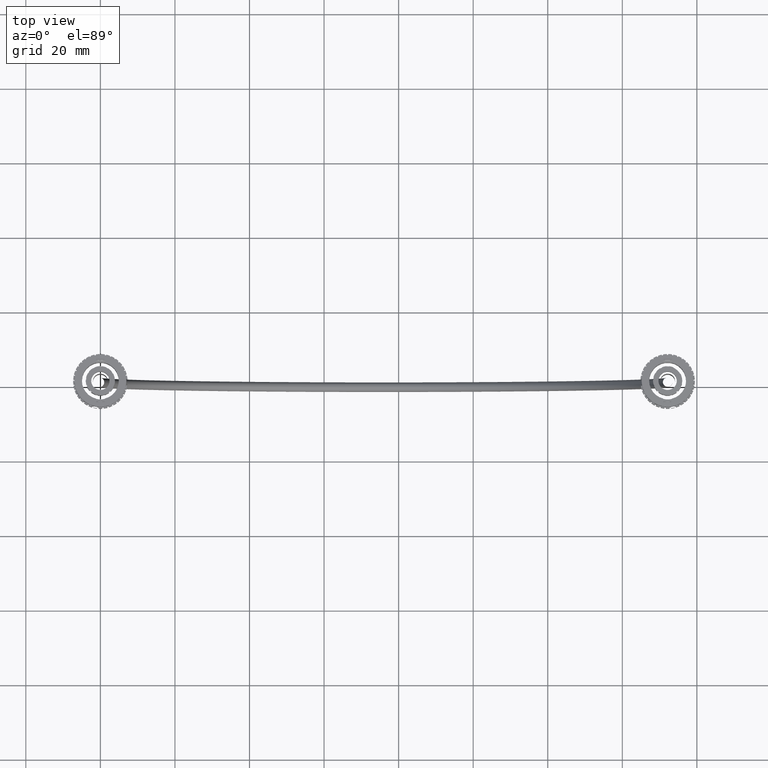
[diagram: clean part render]
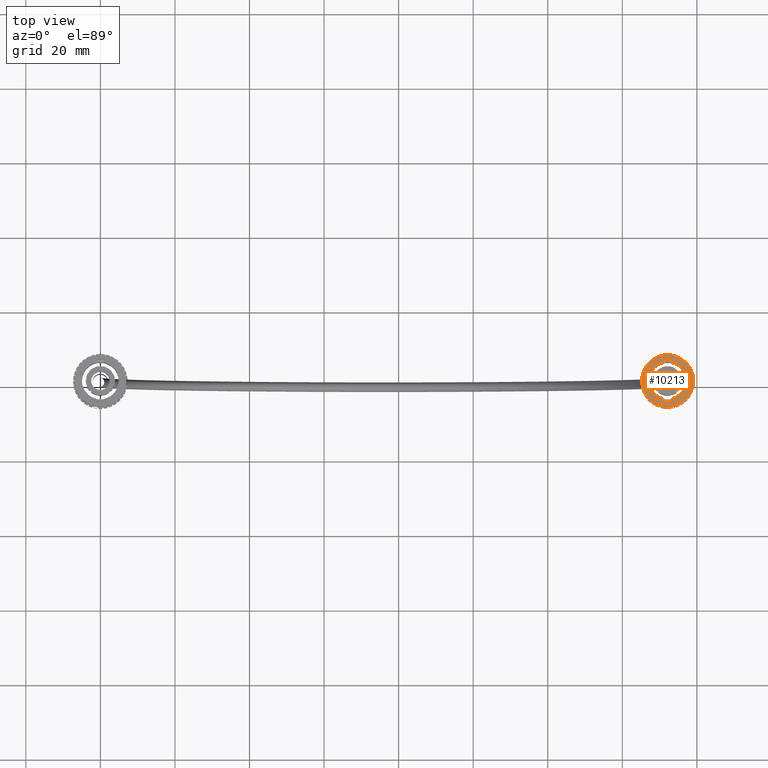
[diagram: same view with one face highlighted and labeled with its STEP entity id]
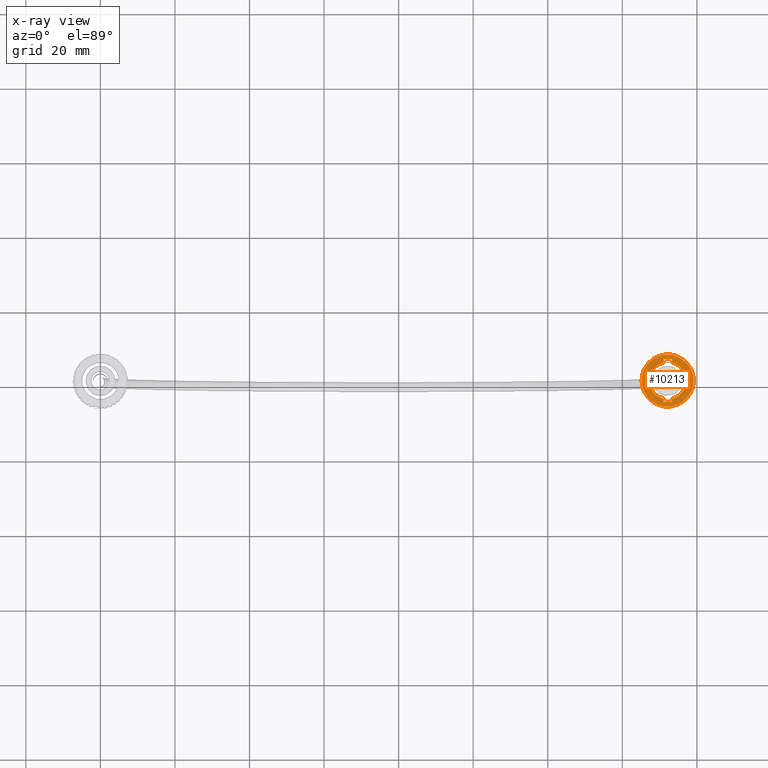
[diagram: x-ray of the same camera — body ghosted, the highlighted face saturated]
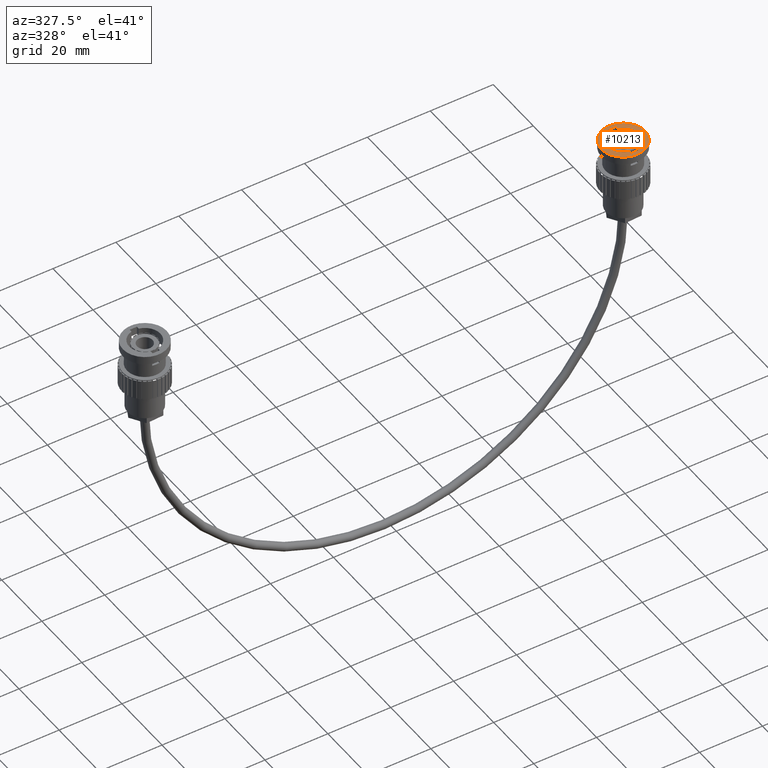
[diagram: same view with one face highlighted and labeled with its STEP entity id]
A machine part, top view. The second image highlights one B-rep face of the part: STEP entity #10213.
The next image is the same camera in x-ray: the body ghosted, the highlighted face saturated — about 0% of this face is hidden behind the body in this view.
A second angle (auxiliary view) of the same face is appended — the face is thin or edge-on in the first view.
In plain terms, the highlighted planar face has unit normal (0, 0, -1).
Its self-contained STEP definition (entity closure, byte-faithful):
#1583 = CARTESIAN_POINT ( 'NONE',  ( 5.990136485393062300, 0.0000000000000000000, 0.0000000000000000000 ) ) ;
#1584 = DIRECTION ( 'NONE',  ( -0.0000000000000000000, -0.0000000000000000000, 1.000000000000000000 ) ) ;
#1585 = DIRECTION ( 'NONE',  ( 1.000000000000000000, 0.0000000000000000000, 0.0000000000000000000 ) ) ;
#1593 = CARTESIAN_POINT ( 'NONE',  ( 5.990136485393062300, 0.0000000000000000000, 0.0000000000000000000 ) ) ;
#1594 = DIRECTION ( 'NONE',  ( -0.0000000000000000000, -0.0000000000000000000, 1.000000000000000000 ) ) ;
#1595 = DIRECTION ( 'NONE',  ( 1.000000000000000000, 0.0000000000000000000, 0.0000000000000000000 ) ) ;
#1785 = CIRCLE ( 'NONE', #17758, 0.1950000000000005100 ) ;
#1791 = CIRCLE ( 'NONE', #17760, 0.1950000000000005100 ) ;
#1797 = CIRCLE ( 'NONE', #17761, 0.1950000000000005100 ) ;
#1807 = CIRCLE ( 'NONE', #17763, 0.2749999999999996900 ) ;
#1855 = LINE ( 'NONE', #7394, #1864 ) ;
#1859 = CIRCLE ( 'NONE', #17771, 0.2749999999999996900 ) ;
#1864 = VECTOR ( 'NONE', #7399, 39.37007874015748100 ) ;
#1867 = LINE ( 'NONE', #7404, #1870 ) ;
#1870 = VECTOR ( 'NONE', #7405, 39.37007874015748100 ) ;
#1875 = LINE ( 'NONE', #7412, #1878 ) ;
#1877 = LINE ( 'NONE', #7401, #1884 ) ;
#1878 = VECTOR ( 'NONE', #7414, 39.37007874015748100 ) ;
#1884 = VECTOR ( 'NONE', #7419, 39.37007874015748100 ) ;
#1896 = LINE ( 'NONE', #7435, #1899 ) ;
#1898 = CIRCLE ( 'NONE', #17773, 0.1950000000000005100 ) ;
#1899 = VECTOR ( 'NONE', #7436, 39.37007874015748100 ) ;
#1900 = LINE ( 'NONE', #7426, #1902 ) ;
#1902 = VECTOR ( 'NONE', #7427, 39.37007874015748100 ) ;
#3636 = EDGE_CURVE ( 'NONE', #17001, #17054, #1785, .T. ) ;
#3640 = EDGE_CURVE ( 'NONE', #16987, #16992, #1791, .T. ) ;
#3647 = EDGE_CURVE ( 'NONE', #16992, #17178, #1797, .T. ) ;
#3656 = EDGE_CURVE ( 'NONE', #17235, #17332, #1807, .T. ) ;
#4270 = EDGE_LOOP ( 'NONE', ( #10747, #10748, #10749, #10750, #10751, #10752, #10753, #10754, #10755, #10756 ) ) ;
#4274 = EDGE_LOOP ( 'NONE', ( #10757, #10758 ) ) ;
#4328 = EDGE_CURVE ( 'NONE', #17332, #17235, #1859, .T. ) ;
#4330 = EDGE_CURVE ( 'NONE', #6170, #6173, #1855, .T. ) ;
#4333 = EDGE_CURVE ( 'NONE', #6173, #16987, #1867, .T. ) ;
#4337 = EDGE_CURVE ( 'NONE', #6170, #17054, #1875, .T. ) ;
#4340 = EDGE_CURVE ( 'NONE', #6174, #6177, #1877, .T. ) ;
#4348 = EDGE_CURVE ( 'NONE', #6177, #6169, #1896, .T. ) ;
#4349 = EDGE_CURVE ( 'NONE', #6169, #17001, #1898, .T. ) ;
#4350 = EDGE_CURVE ( 'NONE', #6174, #17178, #1900, .T. ) ;
#5263 = CARTESIAN_POINT ( 'NONE',  ( 6.035136485393062200, -0.1897366596101027800, 0.0000000000000000000 ) ) ;
#5268 = CARTESIAN_POINT ( 'NONE',  ( 6.185136485393062600, 0.0000000000000000000, 0.0000000000000000000 ) ) ;
#5277 = CARTESIAN_POINT ( 'NONE',  ( 5.795136485393062000, 2.388061258337332200E-017, 0.0000000000000000000 ) ) ;
#5330 = CARTESIAN_POINT ( 'NONE',  ( 5.945136485393061500, -0.1897366596101027800, 0.0000000000000000000 ) ) ;
#5454 = CARTESIAN_POINT ( 'NONE',  ( 6.035136485393062200, 0.1897366596101027800, 0.0000000000000000000 ) ) ;
#5511 = CARTESIAN_POINT ( 'NONE',  ( 6.265136485393061800, 0.0000000000000000000, 0.0000000000000000000 ) ) ;
#5608 = CARTESIAN_POINT ( 'NONE',  ( 5.715136485393062800, 3.367778697655226200E-017, 0.0000000000000000000 ) ) ;
#6169 = VERTEX_POINT ( 'NONE', #13615 ) ;
#6170 = VERTEX_POINT ( 'NONE', #13616 ) ;
#6173 = VERTEX_POINT ( 'NONE', #13619 ) ;
#6174 = VERTEX_POINT ( 'NONE', #13620 ) ;
#6177 = VERTEX_POINT ( 'NONE', #13623 ) ;
#7299 = CARTESIAN_POINT ( 'NONE',  ( 5.990136485393062300, 0.0000000000000000000, 0.0000000000000000000 ) ) ;
#7300 = DIRECTION ( 'NONE',  ( -0.0000000000000000000, -0.0000000000000000000, 1.000000000000000000 ) ) ;
#7301 = DIRECTION ( 'NONE',  ( 1.000000000000000000, 0.0000000000000000000, 0.0000000000000000000 ) ) ;
#7321 = CARTESIAN_POINT ( 'NONE',  ( 5.990136485393062300, 0.0000000000000000000, 0.0000000000000000000 ) ) ;
#7322 = DIRECTION ( 'NONE',  ( -0.0000000000000000000, -0.0000000000000000000, 1.000000000000000000 ) ) ;
#7323 = DIRECTION ( 'NONE',  ( 1.000000000000000000, 0.0000000000000000000, 0.0000000000000000000 ) ) ;
#7394 = CARTESIAN_POINT ( 'NONE',  ( 5.945136485393061500, -0.2249999999999999800, 0.0000000000000000000 ) ) ;
#7395 = CARTESIAN_POINT ( 'NONE',  ( 5.990136485393062300, 0.0000000000000000000, 0.0000000000000000000 ) ) ;
#7396 = DIRECTION ( 'NONE',  ( -0.0000000000000000000, -0.0000000000000000000, 1.000000000000000000 ) ) ;
#7397 = DIRECTION ( 'NONE',  ( 1.000000000000000000, 0.0000000000000000000, 0.0000000000000000000 ) ) ;
#7399 = DIRECTION ( 'NONE',  ( 1.000000000000000000, 3.794233324533698900E-016, 0.0000000000000000000 ) ) ;
#7401 = CARTESIAN_POINT ( 'NONE',  ( 5.945136485393061500, 0.2249999999999999800, 0.0000000000000000000 ) ) ;
#7404 = CARTESIAN_POINT ( 'NONE',  ( 6.035136485393062200, 0.2249999999999999800, 0.0000000000000000000 ) ) ;
#7405 = DIRECTION ( 'NONE',  ( -1.138269997360109700E-016, 1.000000000000000000, -0.0000000000000000000 ) ) ;
#7412 = CARTESIAN_POINT ( 'NONE',  ( 5.945136485393061500, 0.1950000000000000100, 0.0000000000000000000 ) ) ;
#7414 = DIRECTION ( 'NONE',  ( -1.327981663586794600E-016, 1.000000000000000000, 0.0000000000000000000 ) ) ;
#7419 = DIRECTION ( 'NONE',  ( -1.000000000000000000, -0.0000000000000000000, -0.0000000000000000000 ) ) ;
#7426 = CARTESIAN_POINT ( 'NONE',  ( 6.035136485393062200, 0.1950000000000000100, 0.0000000000000000000 ) ) ;
#7427 = DIRECTION ( 'NONE',  ( 1.138269997360109700E-016, -1.000000000000000000, 0.0000000000000000000 ) ) ;
#7435 = CARTESIAN_POINT ( 'NONE',  ( 5.945136485393061500, 0.2249999999999999800, 0.0000000000000000000 ) ) ;
#7436 = DIRECTION ( 'NONE',  ( 1.327981663586794600E-016, -1.000000000000000000, 0.0000000000000000000 ) ) ;
#7439 = CARTESIAN_POINT ( 'NONE',  ( 5.990136485393062300, 0.0000000000000000000, 0.0000000000000000000 ) ) ;
#7440 = DIRECTION ( 'NONE',  ( -0.0000000000000000000, -0.0000000000000000000, 1.000000000000000000 ) ) ;
#7441 = DIRECTION ( 'NONE',  ( 1.000000000000000000, 0.0000000000000000000, 0.0000000000000000000 ) ) ;
#10130 = FACE_BOUND ( 'NONE', #4270, .T. ) ;
#10140 = FACE_OUTER_BOUND ( 'NONE', #4274, .T. ) ;
#10213 = ADVANCED_FACE ( 'NONE', ( #10130, #10140 ), #14046, .F. ) ;
#10747 = ORIENTED_EDGE ( 'NONE', *, *, #4349, .F. ) ;
#10748 = ORIENTED_EDGE ( 'NONE', *, *, #4348, .F. ) ;
#10749 = ORIENTED_EDGE ( 'NONE', *, *, #4340, .F. ) ;
#10750 = ORIENTED_EDGE ( 'NONE', *, *, #4350, .T. ) ;
#10751 = ORIENTED_EDGE ( 'NONE', *, *, #3647, .F. ) ;
#10752 = ORIENTED_EDGE ( 'NONE', *, *, #3640, .F. ) ;
#10753 = ORIENTED_EDGE ( 'NONE', *, *, #4333, .F. ) ;
#10754 = ORIENTED_EDGE ( 'NONE', *, *, #4330, .F. ) ;
#10755 = ORIENTED_EDGE ( 'NONE', *, *, #4337, .T. ) ;
#10756 = ORIENTED_EDGE ( 'NONE', *, *, #3636, .F. ) ;
#10757 = ORIENTED_EDGE ( 'NONE', *, *, #3656, .T. ) ;
#10758 = ORIENTED_EDGE ( 'NONE', *, *, #4328, .T. ) ;
#13615 = CARTESIAN_POINT ( 'NONE',  ( 5.945136485393061500, 0.1897366596101027800, 0.0000000000000000000 ) ) ;
#13616 = CARTESIAN_POINT ( 'NONE',  ( 5.945136485393061500, -0.2250000000000000600, 0.0000000000000000000 ) ) ;
#13619 = CARTESIAN_POINT ( 'NONE',  ( 6.035136485393062200, -0.2249999999999999500, 0.0000000000000000000 ) ) ;
#13620 = CARTESIAN_POINT ( 'NONE',  ( 6.035136485393062200, 0.2249999999999999800, 0.0000000000000000000 ) ) ;
#13623 = CARTESIAN_POINT ( 'NONE',  ( 5.945136485393061500, 0.2249999999999999800, 0.0000000000000000000 ) ) ;
#14041 = CARTESIAN_POINT ( 'NONE',  ( 5.990136485393062300, 0.1950000000000000100, 0.0000000000000000000 ) ) ;
#14046 = PLANE ( 'NONE',  #17979 ) ;
#14051 = DIRECTION ( 'NONE',  ( 0.0000000000000000000, 0.0000000000000000000, -1.000000000000000000 ) ) ;
#14052 = DIRECTION ( 'NONE',  ( -1.000000000000000000, 0.0000000000000000000, -0.0000000000000000000 ) ) ;
#16987 = VERTEX_POINT ( 'NONE', #5263 ) ;
#16992 = VERTEX_POINT ( 'NONE', #5268 ) ;
#17001 = VERTEX_POINT ( 'NONE', #5277 ) ;
#17054 = VERTEX_POINT ( 'NONE', #5330 ) ;
#17178 = VERTEX_POINT ( 'NONE', #5454 ) ;
#17235 = VERTEX_POINT ( 'NONE', #5511 ) ;
#17332 = VERTEX_POINT ( 'NONE', #5608 ) ;
#17758 = AXIS2_PLACEMENT_3D ( 'NONE', #1583, #1584, #1585 ) ;
#17760 = AXIS2_PLACEMENT_3D ( 'NONE', #1593, #1594, #1595 ) ;
#17761 = AXIS2_PLACEMENT_3D ( 'NONE', #7299, #7300, #7301 ) ;
#17763 = AXIS2_PLACEMENT_3D ( 'NONE', #7321, #7322, #7323 ) ;
#17771 = AXIS2_PLACEMENT_3D ( 'NONE', #7395, #7396, #7397 ) ;
#17773 = AXIS2_PLACEMENT_3D ( 'NONE', #7439, #7440, #7441 ) ;
#17979 = AXIS2_PLACEMENT_3D ( 'NONE', #14041, #14051, #14052 ) ;